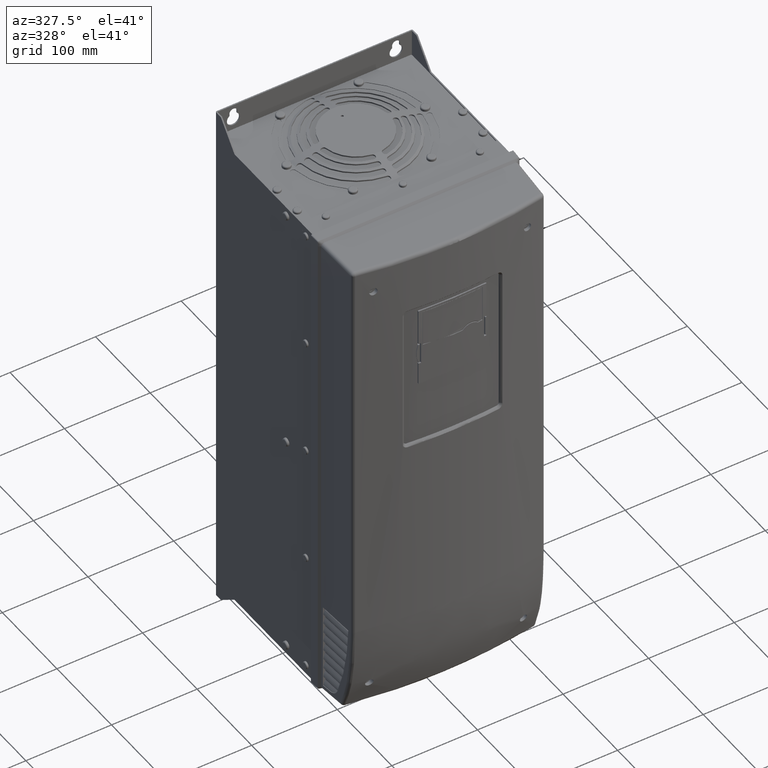
[diagram: clean part render]
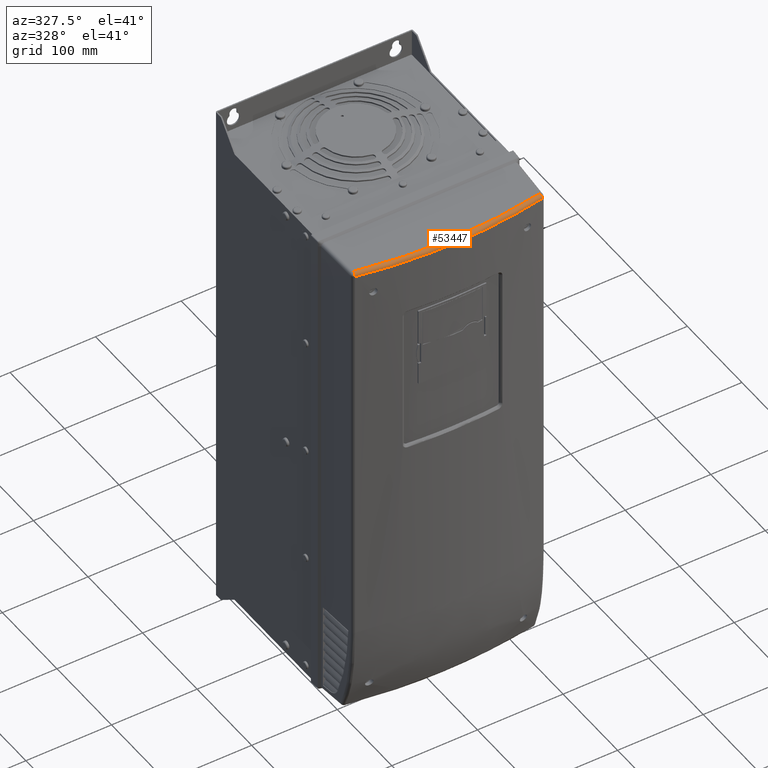
[diagram: same view with one face highlighted and labeled with its STEP entity id]
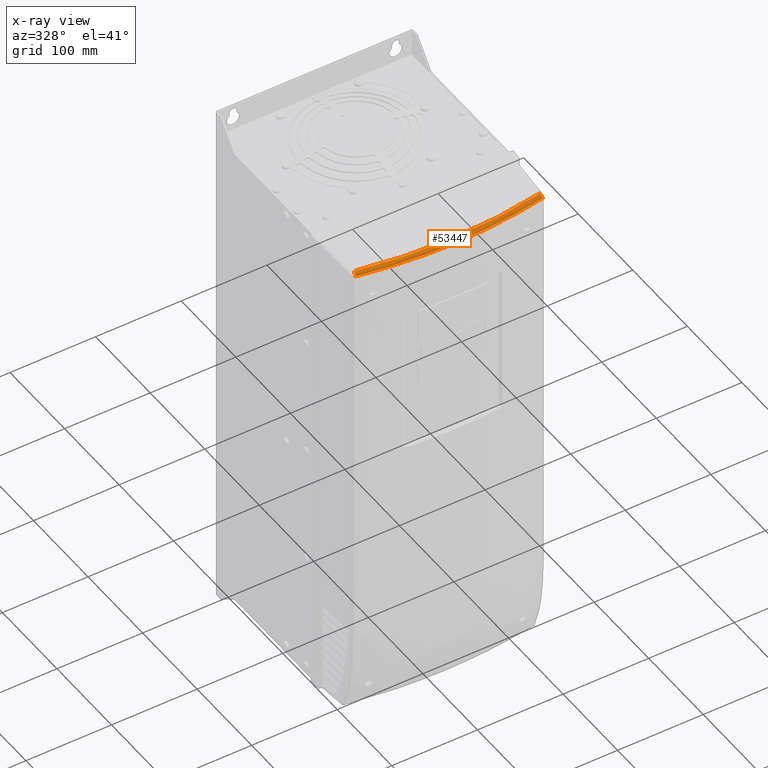
[diagram: x-ray of the same camera — body ghosted, the highlighted face saturated]
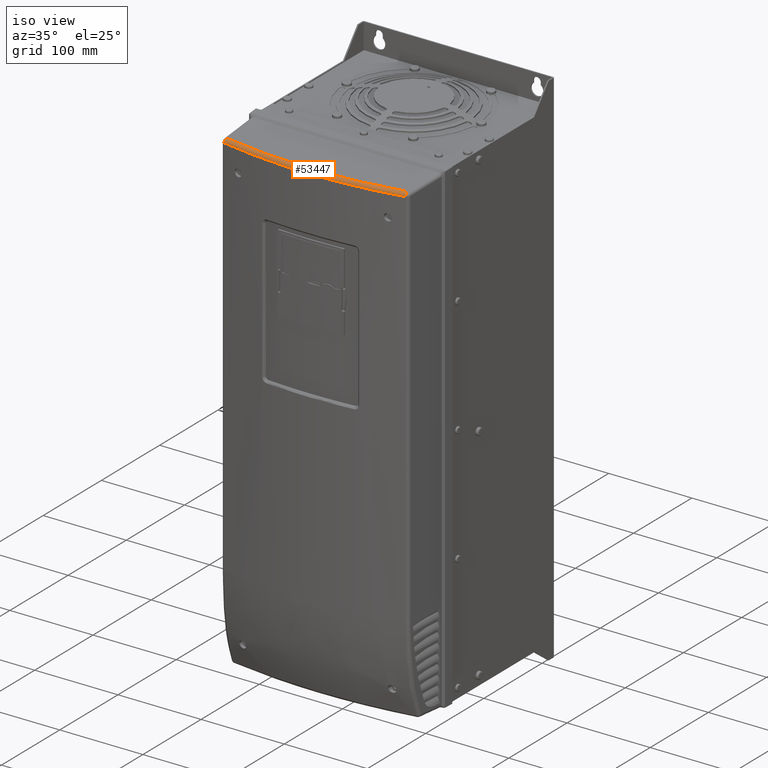
[diagram: same view with one face highlighted and labeled with its STEP entity id]
A machine part, auxiliary view. The second image highlights one B-rep face of the part: STEP entity #53447.
The next image is the same camera in x-ray: the body ghosted, the highlighted face saturated — about 0% of this face is hidden behind the body in this view.
A second angle (iso view) of the same face is appended — the face is thin or edge-on in the first view.
In plain terms, the highlighted toroidal blend (fillet) surface has major radius 598.653 mm and minor (blend) radius 4.0001 mm.
Its self-contained STEP definition (entity closure, byte-faithful):
#4851=CARTESIAN_POINT('',(-1.092975210104E2,-2.473091599403E2,
2.790800603188E2));
#4852=CARTESIAN_POINT('',(-1.006284729163E2,-2.489058262606E2,
2.789968522384E2));
#4853=CARTESIAN_POINT('',(-8.322019850874E1,-2.517191221845E2,
2.788503518165E2));
#4854=CARTESIAN_POINT('',(-5.694815160586E1,-2.547912949518E2,
2.786902505499E2));
#4855=CARTESIAN_POINT('',(-3.936065229045E1,-2.560695588788E2,
2.786234123004E2));
#4856=CARTESIAN_POINT('',(-3.055716062256E1,-2.565159603670E2,
2.785939506061E2));
#4861=CARTESIAN_POINT('',(3.670140007806E1,-2.561730721327E2,2.786090163866E2));
#4862=CARTESIAN_POINT('',(4.481742642531E1,-2.556785302649E2,2.786436885499E2));
#4863=CARTESIAN_POINT('',(6.102955256126E1,-2.543617418444E2,2.787125647380E2));
#4864=CARTESIAN_POINT('',(8.524820874934E1,-2.514046412708E2,2.788666502539E2));
#4865=CARTESIAN_POINT('',(1.013010445099E2,-2.487820251941E2,2.790033901024E2));
#4866=CARTESIAN_POINT('',(1.092977324164E2,-2.473092187422E2,2.790801519341E2));
#18071=CARTESIAN_POINT('',(5.886464878086E-5,3.443384198255E2,
3.137995451318E2));
#18072=DIRECTION('',(3.843463316304E-9,5.219087893951E-2,-9.986371273669E-1));
#18073=DIRECTION('',(1.813622816722E-1,-9.820760815170E-1,-5.132536311556E-2));
#18074=AXIS2_PLACEMENT_3D('',#18071,#18072,#18073);
#18079=CARTESIAN_POINT('',(1.085732124741E2,-2.433754308260E2,
2.790788671513E2));
#18080=DIRECTION('',(9.834163193578E-1,1.811152884117E-1,9.465470101477E-3));
#18081=DIRECTION('',(4.185759932766E-5,-5.241755687268E-2,9.986252540265E-1));
#18082=AXIS2_PLACEMENT_3D('',#18079,#18080,#18081);
#18087=CARTESIAN_POINT('',(3.670140007806E1,-2.561730721327E2,
2.786090163866E2));
#18088=CARTESIAN_POINT('',(3.343711093221E1,-2.563719722043E2,
2.785986906604E2));
#18089=CARTESIAN_POINT('',(2.690530638234E1,-2.567171417619E2,
2.785733863109E2));
#18090=CARTESIAN_POINT('',(1.710042222492E1,-2.570748951438E2,
2.785912465184E2));
#18091=CARTESIAN_POINT('',(1.056082033357E1,-2.572066185871E2,
2.785689246119E2));
#18092=CARTESIAN_POINT('',(7.290691352029E0,-2.572461276095E2,
2.785668734226E2));
#18097=CARTESIAN_POINT('',(1.069246435887E-3,3.461230227297E2,
2.785670040848E2));
#18098=DIRECTION('',(-3.971693170988E-7,1.021186097279E-5,-9.999999999478E-1));
#18099=DIRECTION('',(1.208064810482E-2,-9.999270262559E-1,-1.021591383833E-5));
#18100=AXIS2_PLACEMENT_3D('',#18097,#18098,#18099);
#18105=CARTESIAN_POINT('',(1.069246139473E-3,3.461230227374E2,
2.785662577674E2));
#18106=DIRECTION('',(-3.971693170988E-7,1.021186097279E-5,-9.999999999478E-1));
#18107=DIRECTION('',(2.955594290623E-3,-9.999956321695E-1,-1.021299024101E-5));
#18108=AXIS2_PLACEMENT_3D('',#18105,#18106,#18107);
#18113=CARTESIAN_POINT('',(1.069246133248E-3,3.461230227375E2,
2.785662420958E2));
#18114=DIRECTION('',(-3.971693170988E-7,1.021186097279E-5,-9.999999999478E-1));
#18115=DIRECTION('',(-6.339556613376E-11,-9.999999999479E-1,
-1.021186097280E-5));
#18116=AXIS2_PLACEMENT_3D('',#18113,#18114,#18115);
#18121=CARTESIAN_POINT('',(1.069246337228E-3,3.461230227323E2,
2.785667556786E2));
#18122=DIRECTION('',(-3.971693170988E-7,1.021186097279E-5,-9.999999999478E-1));
#18123=DIRECTION('',(-2.625675796500E-3,-9.999965528552E-1,-1.021078293365E-5));
#18124=AXIS2_PLACEMENT_3D('',#18121,#18122,#18123);
#18129=CARTESIAN_POINT('',(-6.012059037738E0,-2.572602096279E2,
2.785647563235E2));
#18130=CARTESIAN_POINT('',(-8.740606673955E0,-2.572330213517E2,
2.785661676336E2));
#18131=CARTESIAN_POINT('',(-1.419732583413E1,-2.571420681152E2,
2.785816353886E2));
#18132=CARTESIAN_POINT('',(-2.237979188634E1,-2.568939175025E2,
2.785692833654E2));
#18133=CARTESIAN_POINT('',(-2.783199290507E1,-2.566541377983E2,
2.785867774727E2));
#18134=CARTESIAN_POINT('',(-3.055716062256E1,-2.565159603670E2,
2.785939506061E2));
#18147=CARTESIAN_POINT('',(-1.085731714684E2,-2.433754166466E2,
2.790788670566E2));
#18148=DIRECTION('',(9.834162957129E-1,-1.811154168434E-1,-9.465469243818E-3));
#18149=DIRECTION('',(-8.738826277271E-6,-5.223817869511E-2,9.986346542206E-1));
#18150=AXIS2_PLACEMENT_3D('',#18147,#18148,#18149);
#34255=CARTESIAN_POINT('',(1.092977324164E2,-2.473092187422E2,
2.790801519341E2));
#34256=VERTEX_POINT('',#34255);
#34259=CARTESIAN_POINT('',(-1.092975210104E2,-2.473091599403E2,
2.790800603188E2));
#34261=VERTEX_POINT('',#34259);
#34263=VERTEX_POINT('',#4856);
#34264=VERTEX_POINT('',#18129);
#34265=CARTESIAN_POINT('',(-1.583299050661E0,-2.572884256893E2,
2.785605943540E2));
#34266=VERTEX_POINT('',#34265);
#34267=CARTESIAN_POINT('',(1.069207879506E-3,-2.572905057064E2,
2.785600801207E2));
#34268=VERTEX_POINT('',#34267);
#34269=CARTESIAN_POINT('',(1.784514825786E0,-2.572878701300E2,
2.785600951109E2));
#34270=VERTEX_POINT('',#34269);
#34271=CARTESIAN_POINT('',(7.290695745632E0,-2.572464724013E2,
2.785608396642E2));
#34272=VERTEX_POINT('',#34271);
#34273=VERTEX_POINT('',#18087);
#34326=CARTESIAN_POINT('',(-1.085732263801E2,-2.435847648855E2,
2.830739828671E2));
#34327=VERTEX_POINT('',#34326);
#35909=CARTESIAN_POINT('',(1.085732685008E2,-2.435845452851E2,
2.830741756470E2));
#35910=VERTEX_POINT('',#35909);
#53427=CARTESIAN_POINT('',(5.888002284977E-5,3.445471862695E2,
3.098049405932E2));
#53428=DIRECTION('',(-3.843463316304E-9,-5.219087893951E-2,9.986371273669E-1));
#53429=DIRECTION('',(1.813624625459E-1,-9.820760482056E-1,-5.132536137463E-2));
#53430=AXIS2_PLACEMENT_3D('',#53427,#53428,#53429);
#53431=TOROIDAL_SURFACE('',#53430,5.986528417730E2,4.000056212173E0);
#53433=ORIENTED_EDGE('',*,*,#53432,.F.);
#53434=ORIENTED_EDGE('',*,*,#53422,.F.);
#53436=ORIENTED_EDGE('',*,*,#53435,.T.);
#53437=ORIENTED_EDGE('',*,*,#40028,.F.);
#53438=ORIENTED_EDGE('',*,*,#40026,.T.);
#53439=ORIENTED_EDGE('',*,*,#40024,.T.);
#53440=ORIENTED_EDGE('',*,*,#40022,.T.);
#53441=ORIENTED_EDGE('',*,*,#40020,.T.);
#53442=ORIENTED_EDGE('',*,*,#40018,.T.);
#53443=ORIENTED_EDGE('',*,*,#40016,.T.);
#53444=ORIENTED_EDGE('',*,*,#40014,.F.);
#53445=EDGE_LOOP('',(#53433,#53434,#53436,#53437,#53438,#53439,#53440,#53441,
#53442,#53443,#53444));
#53446=FACE_OUTER_BOUND('',#53445,.F.);
#53447=ADVANCED_FACE('',(#53446),#53431,.T.);
#4857=B_SPLINE_CURVE_WITH_KNOTS('',3,(#4851,#4852,#4853,#4854,#4855,#4856),
.UNSPECIFIED.,.F.,.F.,(4,1,1,4),(0.E0,3.333333333333E-1,6.666666666667E-1,1.E0),
.UNSPECIFIED.);
#4867=B_SPLINE_CURVE_WITH_KNOTS('',3,(#4861,#4862,#4863,#4864,#4865,#4866),
.UNSPECIFIED.,.F.,.F.,(4,1,1,4),(0.E0,3.333333333333E-1,6.666666666667E-1,1.E0),
.UNSPECIFIED.);
#18075=CIRCLE('',#18074,5.986537650518E2);
#18083=CIRCLE('',#18082,4.000056212173E0);
#18093=B_SPLINE_CURVE_WITH_KNOTS('',3,(#18087,#18088,#18089,#18090,#18091,
#18092),.UNSPECIFIED.,.F.,.F.,(4,1,1,4),(0.E0,3.333333333333E-1,
6.666666666667E-1,1.E0),.UNSPECIFIED.);
#18101=CIRCLE('',#18100,6.034135284754E2);
#18109=CIRCLE('',#18108,6.034135284754E2);
#18117=CIRCLE('',#18116,6.034135284754E2);
#18125=CIRCLE('',#18124,6.034135284754E2);
#18135=B_SPLINE_CURVE_WITH_KNOTS('',3,(#18129,#18130,#18131,#18132,#18133,
#18134),.UNSPECIFIED.,.F.,.F.,(4,1,1,4),(0.E0,3.333333333333E-1,
6.666666666667E-1,1.E0),.UNSPECIFIED.);
#18151=CIRCLE('',#18150,4.000056212173E0);
#40014=EDGE_CURVE('',#34261,#34263,#4857,.T.);
#40016=EDGE_CURVE('',#34264,#34263,#18135,.T.);
#40018=EDGE_CURVE('',#34266,#34264,#18125,.T.);
#40020=EDGE_CURVE('',#34268,#34266,#18117,.T.);
#40022=EDGE_CURVE('',#34270,#34268,#18109,.T.);
#40024=EDGE_CURVE('',#34272,#34270,#18101,.T.);
#40026=EDGE_CURVE('',#34273,#34272,#18093,.T.);
#40028=EDGE_CURVE('',#34273,#34256,#4867,.T.);
#53422=EDGE_CURVE('',#35910,#34327,#18075,.T.);
#53432=EDGE_CURVE('',#34327,#34261,#18151,.T.);
#53435=EDGE_CURVE('',#35910,#34256,#18083,.T.);